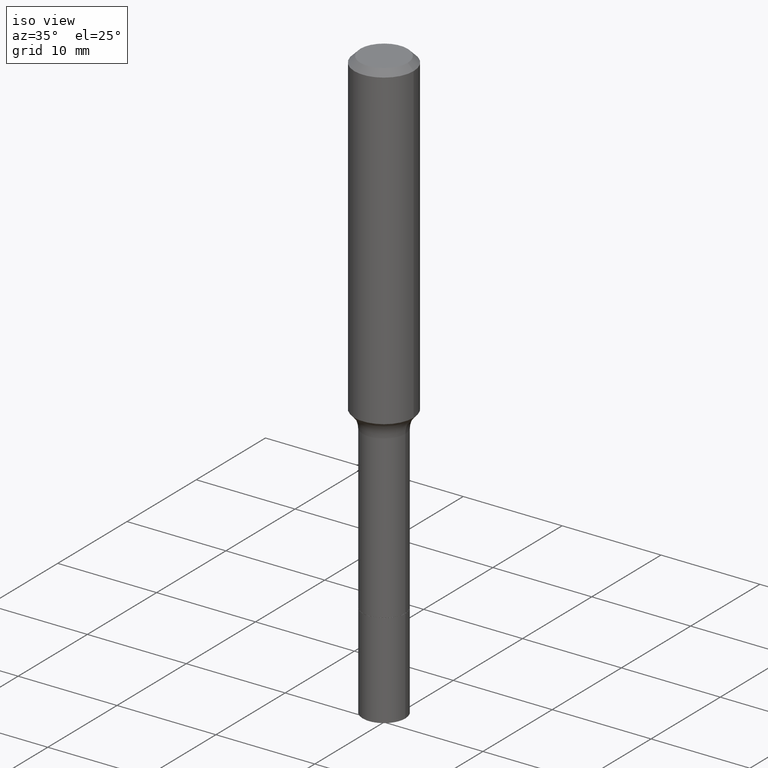
[diagram: clean part render]
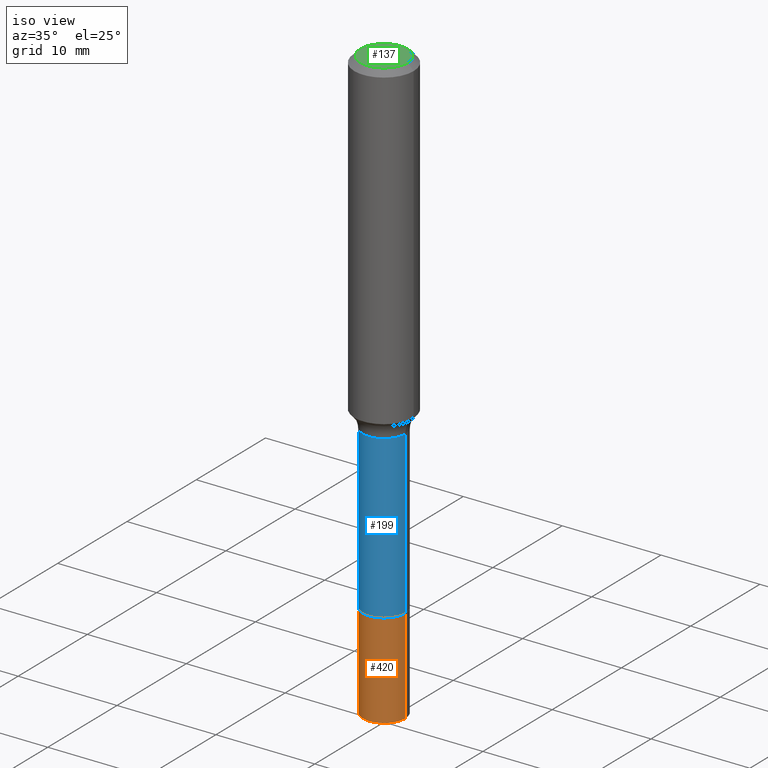
[diagram: same view with three faces highlighted in distinct colors, each labeled with its STEP entity id]
A machine part, iso view with three faces highlighted in distinct colors.
Their STEP definitions:

[orange] entity #420 — the highlighted cylindrical surface (edge-blend (fillet) strip) has radius 2.1501 mm, axis along (-0, 0, 1).
#16 = LINE ( 'NONE', #92, #406 ) ;
#59 = DIRECTION ( 'NONE',  ( -2.445468806185136877E-29, 3.491481338843145188E-15, 1.000000000000000000 ) ) ;
#60 = CARTESIAN_POINT ( 'NONE',  ( 0.08465000000000001690, -7.518905063198713271E-15, -1.984200000000000186 ) ) ;
#72 = DIRECTION ( 'NONE',  ( -2.445468806185136597E-29, 3.491481338843145583E-15, 1.000000000000000000 ) ) ;
#89 = VERTEX_POINT ( 'NONE', #60 ) ;
#92 = CARTESIAN_POINT ( 'NONE',  ( -0.08465000000000007241, -6.326322846711644457E-15, -1.984200000000000186 ) ) ;
#99 = EDGE_CURVE ( 'NONE', #257, #246, #16, .T. ) ;
#100 = CARTESIAN_POINT ( 'NONE',  ( -0.08465000000000014180, -6.986212819752998050E-15, -2.362200000000000077 ) ) ;
#103 = DIRECTION ( 'NONE',  ( -2.445468806185136597E-29, 3.491481338843145583E-15, 1.000000000000000000 ) ) ;
#119 = CIRCLE ( 'NONE', #424, 0.08465000000000001690 ) ;
#139 = FACE_OUTER_BOUND ( 'NONE', #241, .T. ) ;
#150 = LINE ( 'NONE', #314, #264 ) ;
#172 = EDGE_CURVE ( 'NONE', #257, #287, #275, .T. ) ;
#174 = AXIS2_PLACEMENT_3D ( 'NONE', #305, #103, #350 ) ;
#178 = CARTESIAN_POINT ( 'NONE',  ( 4.852299205232548402E-29, -6.927797272532570075E-15, -1.984200000000000186 ) ) ;
#200 = ORIENTED_EDGE ( 'NONE', *, *, #99, .F. ) ;
#223 = DIRECTION ( 'NONE',  ( -2.445468806185136877E-29, 3.491481338843145188E-15, 1.000000000000000000 ) ) ;
#224 = DIRECTION ( 'NONE',  ( -2.445468806185136597E-29, 3.491481338843145583E-15, 1.000000000000000000 ) ) ;
#233 = CARTESIAN_POINT ( 'NONE',  ( -0.08465000000000001690, -6.986212819752998838E-15, -1.984200000000000186 ) ) ;
#239 = ORIENTED_EDGE ( 'NONE', *, *, #513, .F. ) ;
#241 = EDGE_LOOP ( 'NONE', ( #200, #442, #333, #239 ) ) ;
#246 = VERTEX_POINT ( 'NONE', #233 ) ;
#257 = VERTEX_POINT ( 'NONE', #100 ) ;
#264 = VECTOR ( 'NONE', #223, 39.37007874015748143 ) ;
#268 = CARTESIAN_POINT ( 'NONE',  ( 4.852299205232548402E-29, -6.927797272532570075E-15, -1.984200000000000186 ) ) ;
#275 = CIRCLE ( 'NONE', #174, 0.08465000000000014180 ) ;
#287 = VERTEX_POINT ( 'NONE', #304 ) ;
#304 = CARTESIAN_POINT ( 'NONE',  ( 0.08465000000000014180, -8.838685009281422034E-15, -2.362200000000000077 ) ) ;
#305 = CARTESIAN_POINT ( 'NONE',  ( 5.776686413970529753E-29, -8.247577218615279626E-15, -2.362200000000000077 ) ) ;
#309 = CYLINDRICAL_SURFACE ( 'NONE', #516, 0.08465000000000007241 ) ;
#314 = CARTESIAN_POINT ( 'NONE',  ( 0.08465000000000007241, -7.518905063198713271E-15, -1.984200000000000186 ) ) ;
#323 = DIRECTION ( 'NONE',  ( 1.000000000000000000, -6.982962677686264344E-15, 0.000000000000000000 ) ) ;
#333 = ORIENTED_EDGE ( 'NONE', *, *, #369, .T. ) ;
#350 = DIRECTION ( 'NONE',  ( 1.000000000000000000, -6.982962677686270655E-15, 0.000000000000000000 ) ) ;
#369 = EDGE_CURVE ( 'NONE', #287, #89, #150, .T. ) ;
#383 = DIRECTION ( 'NONE',  ( 1.000000000000000000, -6.982962677686269077E-15, 0.000000000000000000 ) ) ;
#406 = VECTOR ( 'NONE', #59, 39.37007874015748143 ) ;
#420 = ADVANCED_FACE ( 'NONE', ( #139 ), #309, .T. ) ;
#424 = AXIS2_PLACEMENT_3D ( 'NONE', #178, #224, #383 ) ;
#442 = ORIENTED_EDGE ( 'NONE', *, *, #172, .T. ) ;
#513 = EDGE_CURVE ( 'NONE', #246, #89, #119, .T. ) ;
#516 = AXIS2_PLACEMENT_3D ( 'NONE', #268, #72, #323 ) ;

[blue] entity #199 — the highlighted cylindrical surface (edge-blend (fillet) strip) has radius 2.1501 mm, axis along (-0, 0, 1).
#17 = DIRECTION ( 'NONE',  ( -2.445468806185136877E-29, 3.491481338843145188E-15, 1.000000000000000000 ) ) ;
#26 = CARTESIAN_POINT ( 'NONE',  ( -0.08464999999999997526, 6.014744258209246316E-16, -4.163878553900776454E-30 ) ) ;
#35 = CARTESIAN_POINT ( 'NONE',  ( -0.08464999999999991975, -5.197701503930597829E-15, -1.338200000000000056 ) ) ;
#39 = LINE ( 'NONE', #26, #436 ) ;
#44 = EDGE_CURVE ( 'NONE', #166, #73, #296, .T. ) ;
#48 = VECTOR ( 'NONE', #17, 39.37007874015748143 ) ;
#73 = VERTEX_POINT ( 'NONE', #173 ) ;
#75 = ORIENTED_EDGE ( 'NONE', *, *, #157, .F. ) ;
#87 = CARTESIAN_POINT ( 'NONE',  ( 4.851076470829456161E-29, -6.926051531863148571E-15, -1.983700000000000241 ) ) ;
#88 = CARTESIAN_POINT ( 'NONE',  ( 0.08464999999999997526, -5.911077906661423090E-16, 4.127683640711257810E-30 ) ) ;
#116 = CYLINDRICAL_SURFACE ( 'NONE', #229, 0.08464999999999997526 ) ;
#126 = VERTEX_POINT ( 'NONE', #35 ) ;
#138 = CIRCLE ( 'NONE', #342, 0.08465000000000001690 ) ;
#148 = CARTESIAN_POINT ( 'NONE',  ( 0.08465000000000001690, -7.517159322529290979E-15, -1.983700000000000241 ) ) ;
#151 = DIRECTION ( 'NONE',  ( -2.445468806185136877E-29, 3.491481338843145188E-15, 1.000000000000000000 ) ) ;
#157 = EDGE_CURVE ( 'NONE', #214, #126, #39, .T. ) ;
#166 = VERTEX_POINT ( 'NONE', #148 ) ;
#171 = CARTESIAN_POINT ( 'NONE',  ( -0.08465000000000001690, -5.197701503930597040E-15, -1.983700000000000241 ) ) ;
#173 = CARTESIAN_POINT ( 'NONE',  ( 0.08464999999999991975, -5.263408118306038364E-15, -1.338200000000000056 ) ) ;
#199 = ADVANCED_FACE ( 'NONE', ( #265 ), #116, .T. ) ;
#213 = DIRECTION ( 'NONE',  ( 1.000000000000000000, -6.982962677686269077E-15, 0.000000000000000000 ) ) ;
#214 = VERTEX_POINT ( 'NONE', #171 ) ;
#229 = AXIS2_PLACEMENT_3D ( 'NONE', #428, #344, #311 ) ;
#244 = CIRCLE ( 'NONE', #391, 0.08464999999999991975 ) ;
#265 = FACE_OUTER_BOUND ( 'NONE', #443, .T. ) ;
#296 = LINE ( 'NONE', #88, #48 ) ;
#297 = DIRECTION ( 'NONE',  ( -2.445468806185136597E-29, 3.491481338843145583E-15, 1.000000000000000000 ) ) ;
#299 = DIRECTION ( 'NONE',  ( 1.000000000000000000, -6.982962677686265133E-15, 0.000000000000000000 ) ) ;
#300 = ORIENTED_EDGE ( 'NONE', *, *, #484, .F. ) ;
#311 = DIRECTION ( 'NONE',  ( 1.000000000000000000, -6.982962677686266711E-15, 4.876176775795935232E-29 ) ) ;
#328 = CARTESIAN_POINT ( 'NONE',  ( 3.272526356436949336E-29, -4.672300327639896745E-15, -1.338200000000000056 ) ) ;
#342 = AXIS2_PLACEMENT_3D ( 'NONE', #87, #456, #213 ) ;
#344 = DIRECTION ( 'NONE',  ( -2.445468806185136597E-29, 3.491481338843145583E-15, 1.000000000000000000 ) ) ;
#357 = ORIENTED_EDGE ( 'NONE', *, *, #496, .T. ) ;
#391 = AXIS2_PLACEMENT_3D ( 'NONE', #328, #297, #299 ) ;
#403 = ORIENTED_EDGE ( 'NONE', *, *, #44, .T. ) ;
#428 = CARTESIAN_POINT ( 'NONE',  ( 0.000000000000000000, 0.000000000000000000, 0.000000000000000000 ) ) ;
#436 = VECTOR ( 'NONE', #151, 39.37007874015748143 ) ;
#443 = EDGE_LOOP ( 'NONE', ( #75, #357, #403, #300 ) ) ;
#456 = DIRECTION ( 'NONE',  ( -2.445468806185136597E-29, 3.491481338843145583E-15, 1.000000000000000000 ) ) ;
#484 = EDGE_CURVE ( 'NONE', #126, #73, #244, .T. ) ;
#496 = EDGE_CURVE ( 'NONE', #214, #166, #138, .T. ) ;

[green] entity #137 — the highlighted planar face has unit normal (0, -0, -1).
#27 = AXIS2_PLACEMENT_3D ( 'NONE', #372, #94, #182 ) ;
#32 = DIRECTION ( 'NONE',  ( 1.000000000000000000, -6.982962677686267499E-15, 4.875432709231658792E-29 ) ) ;
#80 = CARTESIAN_POINT ( 'NONE',  ( 7.545787641473140628E-46, -1.077338491108201769E-31, -3.085620075131671975E-17 ) ) ;
#94 = DIRECTION ( 'NONE',  ( 2.438088387897960049E-29, -3.491481338843145188E-15, -1.000000000000000000 ) ) ;
#101 = CIRCLE ( 'NONE', #140, 0.09447999999999998066 ) ;
#128 = CARTESIAN_POINT ( 'NONE',  ( 0.09447999999999998066, -7.704367267948738690E-16, -3.085620075131172158E-17 ) ) ;
#133 = ORIENTED_EDGE ( 'NONE', *, *, #429, .T. ) ;
#137 = ADVANCED_FACE ( 'NONE', ( #302 ), #460, .F. ) ;
#140 = AXIS2_PLACEMENT_3D ( 'NONE', #439, #435, #32 ) ;
#155 = CARTESIAN_POINT ( 'NONE',  ( -0.09447999999999998066, 7.009847083995354710E-16, -3.085620075132147757E-17 ) ) ;
#164 = ORIENTED_EDGE ( 'NONE', *, *, #263, .T. ) ;
#182 = DIRECTION ( 'NONE',  ( -1.000000000000000000, 6.982962677686265922E-15, -4.876176775795935793E-29 ) ) ;
#216 = VERTEX_POINT ( 'NONE', #128 ) ;
#263 = EDGE_CURVE ( 'NONE', #280, #216, #101, .T. ) ;
#280 = VERTEX_POINT ( 'NONE', #155 ) ;
#302 = FACE_OUTER_BOUND ( 'NONE', #358, .T. ) ;
#347 = AXIS2_PLACEMENT_3D ( 'NONE', #80, #398, #517 ) ;
#358 = EDGE_LOOP ( 'NONE', ( #164, #133 ) ) ;
#370 = CIRCLE ( 'NONE', #347, 0.09447999999999998066 ) ;
#372 = CARTESIAN_POINT ( 'NONE',  ( 3.772893820736570314E-46, -5.386692455541008845E-32, -1.542810037565835988E-17 ) ) ;
#398 = DIRECTION ( 'NONE',  ( -2.445468806185136597E-29, 3.491481338843145583E-15, 1.000000000000000000 ) ) ;
#429 = EDGE_CURVE ( 'NONE', #216, #280, #370, .T. ) ;
#435 = DIRECTION ( 'NONE',  ( -2.445468806185136597E-29, 3.491481338843145583E-15, 1.000000000000000000 ) ) ;
#439 = CARTESIAN_POINT ( 'NONE',  ( 7.545787641473140628E-46, -1.077338491108201769E-31, -3.085620075131671975E-17 ) ) ;
#460 = PLANE ( 'NONE',  #27 ) ;
#517 = DIRECTION ( 'NONE',  ( 1.000000000000000000, -6.982962677686267499E-15, 4.875432709231658792E-29 ) ) ;